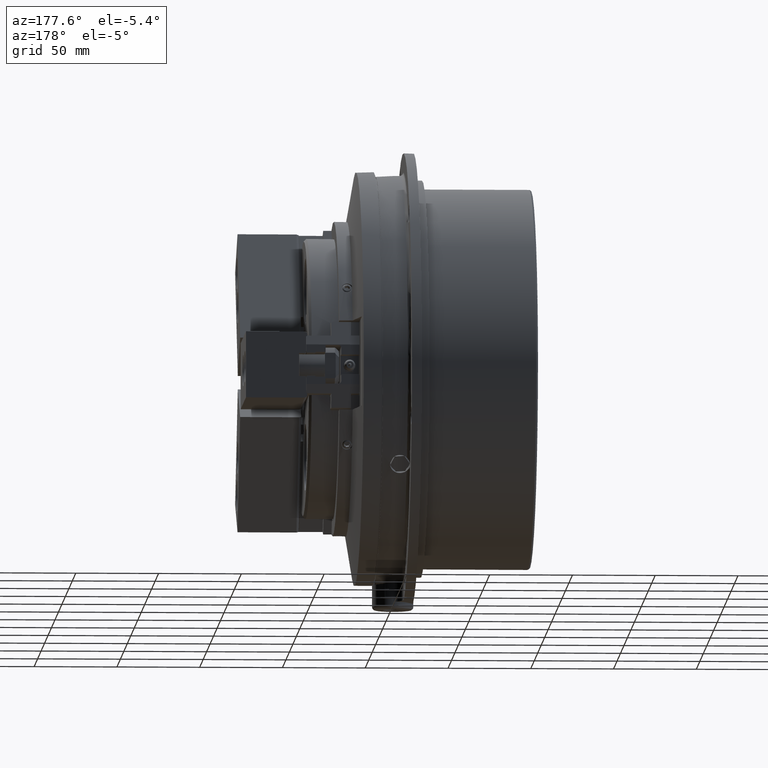
[diagram: clean part render]
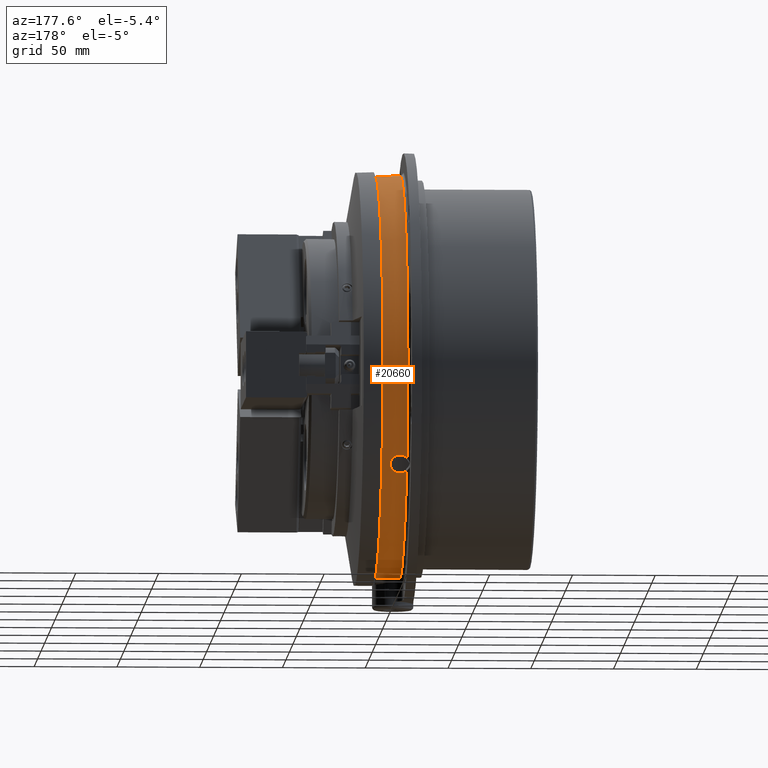
[diagram: same view with one face highlighted and labeled with its STEP entity id]
A machine part, auxiliary view. The second image highlights one B-rep face of the part: STEP entity #20660.
In plain terms, the highlighted conical surface has half-angle 1.685 deg.
Its self-contained STEP definition (entity closure, byte-faithful):
#135=CONICAL_SURFACE('',#22106,122.5,0.0294035619083412);
#596=B_SPLINE_CURVE_WITH_KNOTS('',3,(#32305,#32306,#32307,#32308,#32309),
 .UNSPECIFIED.,.F.,.F.,(4,1,4),(0.,0.5,1.),.UNSPECIFIED.);
#613=B_SPLINE_CURVE_WITH_KNOTS('',3,(#33036,#33037,#33038,#33039),
 .UNSPECIFIED.,.F.,.F.,(4,4),(0.,1.),.UNSPECIFIED.);
#614=B_SPLINE_CURVE_WITH_KNOTS('',3,(#33074,#33075,#33076,#33077,#33078,
#33079),.UNSPECIFIED.,.F.,.F.,(4,1,1,4),(0.,0.25,0.5,1.),.UNSPECIFIED.);
#615=B_SPLINE_CURVE_WITH_KNOTS('',3,(#33082,#33083,#33084,#33085,#33086,
#33087,#33088,#33089,#33090,#33091,#33092,#33093,#33094,#33095,#33096,#33097,
#33098,#33099,#33100,#33101,#33102,#33103,#33104,#33105,#33106,#33107,#33108,
#33109,#33110,#33111,#33112,#33113,#33114,#33115,#33116,#33117,#33118,#33119,
#33120,#33121,#33122,#33123,#33124,#33125,#33126,#33127,#33128,#33129,#33130,
#33131,#33132,#33133,#33134,#33135,#33136,#33137,#33138,#33139,#33140,#33141,
#33142,#33143,#33144,#33145,#33146,#33147,#33148,#33149,#33150,#33151,#33152,
#33153,#33154,#33155,#33156,#33157,#33158,#33159,#33160,#33161,#33162,#33163,
#33164,#33165,#33166,#33167,#33168,#33169,#33170,#33171,#33172,#33173,#33174,
#33175,#33176,#33177,#33178,#33179,#33180,#33181,#33182,#33183,#33184,#33185,
#33186,#33187,#33188,#33189,#33190,#33191,#33192,#33193,#33194,#33195,#33196,
#33197,#33198,#33199,#33200,#33201,#33202,#33203,#33204,#33205,#33206,#33207,
#33208,#33209,#33210,#33211,#33212,#33213,#33214,#33215,#33216,#33217,#33218,
#33219,#33220,#33221,#33222),.UNSPECIFIED.,.F.,.F.,(4,1,1,1,2,1,2,2,1,1,
1,1,2,2,2,1,2,1,1,1,2,2,1,1,2,1,1,2,1,2,2,1,1,1,1,2,2,2,1,2,1,1,1,2,2,1,
2,1,1,2,1,2,2,1,1,1,1,2,2,2,1,2,1,1,1,2,2,1,1,2,1,1,2,1,1,1,1,2,2,1,1,2,
1,1,2,1,2,2,1,1,1,2,1,2,2,1,1,1,4),(0.,0.0156249999999962,0.0312499999999924,
0.0468749999999886,0.0624999999999848,0.070312499999983,0.0722656249999825,
0.074218749999982,0.0781249999999821,0.0937499999999817,0.109374999999981,
0.124999999999981,0.14062499999998,0.14453124999998,0.14648437499998,0.14843749999998,
0.156249999999981,0.171874999999982,0.187499999999984,0.203124999999985,
0.218749999999987,0.220703124999987,0.222656249999987,0.226562499999988,
0.23437499999999,0.249999999999992,0.265624999999994,0.281249999999997,
0.289062499999997,0.291015624999997,0.292968749999997,0.296874999999995,
0.312499999999991,0.328124999999987,0.343749999999983,0.359374999999979,
0.363281249999978,0.365234374999978,0.367187499999978,0.374999999999979,
0.390624999999983,0.406249999999986,0.42187499999999,0.437499999999993,
0.441406249999994,0.445312499999996,0.453124999999999,0.468750000000007,
0.484375000000015,0.500000000000023,0.507812500000026,0.509765625000027,
0.511718750000027,0.515625000000028,0.531250000000034,0.54687500000004,
0.562500000000046,0.578125000000052,0.582031250000053,0.583984375000053,
0.585937500000053,0.593750000000053,0.609375000000054,0.625000000000054,
0.640625000000055,0.656250000000055,0.671875000000056,0.687500000000056,
0.703125000000057,0.718750000000057,0.726562500000058,0.728515625000057,
0.730468750000056,0.734375000000055,0.75000000000005,0.765625000000045,
0.78125000000004,0.796875000000035,0.800781250000034,0.802734375000033,
0.804687500000032,0.812500000000031,0.828125000000029,0.843750000000027,
0.859375000000024,0.867187500000024,0.871093750000023,0.875000000000022,
0.890625000000019,0.906250000000016,0.921875000000013,0.93750000000001,
0.945312500000008,0.947265625000008,0.949218750000008,0.953125000000008,
0.968750000000005,0.984375000000003,1.),.UNSPECIFIED.);
#616=B_SPLINE_CURVE_WITH_KNOTS('',3,(#33226,#33227,#33228,#33229,#33230,
#33231,#33232,#33233,#33234,#33235,#33236,#33237,#33238,#33239,#33240,#33241,
#33242,#33243,#33244,#33245,#33246,#33247,#33248,#33249,#33250,#33251,#33252,
#33253,#33254,#33255,#33256,#33257,#33258,#33259,#33260,#33261,#33262,#33263,
#33264,#33265,#33266,#33267,#33268,#33269,#33270,#33271,#33272,#33273,#33274,
#33275,#33276,#33277,#33278,#33279,#33280,#33281,#33282,#33283,#33284,#33285,
#33286,#33287,#33288,#33289,#33290,#33291,#33292,#33293,#33294,#33295,#33296,
#33297,#33298,#33299,#33300,#33301,#33302,#33303,#33304,#33305,#33306,#33307,
#33308,#33309,#33310,#33311,#33312,#33313,#33314,#33315,#33316,#33317,#33318,
#33319,#33320,#33321,#33322,#33323,#33324,#33325,#33326,#33327,#33328,#33329,
#33330,#33331,#33332,#33333,#33334,#33335,#33336,#33337,#33338,#33339,#33340,
#33341,#33342,#33343,#33344,#33345,#33346,#33347,#33348,#33349,#33350,#33351,
#33352,#33353,#33354,#33355,#33356,#33357,#33358,#33359,#33360,#33361,#33362,
#33363,#33364,#33365,#33366),.UNSPECIFIED.,.F.,.F.,(4,1,1,1,2,1,2,2,1,1,
1,1,2,2,2,1,2,1,1,1,2,2,1,1,2,1,1,2,1,2,2,1,1,1,1,2,2,2,1,2,1,1,1,2,2,1,
2,1,1,2,1,2,2,1,1,1,1,2,2,2,1,2,1,1,1,2,2,1,1,2,1,1,2,1,1,1,1,2,2,1,1,2,
1,1,2,1,2,2,1,1,1,2,1,2,2,1,1,1,4),(0.,0.0156250000000027,0.0312500000000053,
0.046875000000008,0.0625000000000106,0.0703125000000123,0.0722656250000127,
0.0742187500000131,0.0781250000000145,0.0937500000000184,0.109375000000022,
0.125000000000026,0.14062500000003,0.14453125000003,0.146484375000031,0.148437500000031,
0.156250000000032,0.171875000000034,0.187500000000036,0.203125000000038,
0.21875000000004,0.22070312500004,0.222656250000039,0.226562500000039,0.234375000000038,
0.250000000000037,0.265625000000036,0.281250000000036,0.289062500000035,
0.291015625000035,0.292968750000035,0.296875000000035,0.312500000000034,
0.328125000000034,0.343750000000034,0.359375000000033,0.363281250000034,
0.365234375000034,0.367187500000034,0.375000000000033,0.390625000000032,
0.40625000000003,0.421875000000029,0.437500000000028,0.441406250000027,
0.445312500000027,0.453125000000026,0.468750000000024,0.484375000000022,
0.50000000000002,0.507812500000019,0.509765625000019,0.511718750000018,
0.515625000000018,0.531250000000016,0.546875000000014,0.562500000000013,
0.578125000000011,0.58203125000001,0.58398437500001,0.58593750000001,0.59375000000001,
0.609375000000008,0.625000000000006,0.640625000000005,0.656250000000003,
0.671875000000001,0.6875,0.703124999999998,0.718749999999996,0.726562499999995,
0.728515624999995,0.730468749999994,0.734374999999994,0.749999999999992,
0.765624999999989,0.781249999999987,0.796874999999985,0.800781249999984,
0.802734374999985,0.804687499999985,0.812499999999985,0.828124999999985,
0.843749999999985,0.859374999999984,0.867187499999984,0.871093749999984,
0.874999999999984,0.890624999999985,0.906249999999985,0.921874999999986,
0.937499999999987,0.945312499999987,0.947265624999987,0.949218749999987,
0.953124999999987,0.968749999999992,0.984374999999996,1.),.UNSPECIFIED.);
#5015=ORIENTED_EDGE('',*,*,#10723,.F.);
#5016=ORIENTED_EDGE('',*,*,#10724,.T.);
#5017=ORIENTED_EDGE('',*,*,#10632,.F.);
#5018=ORIENTED_EDGE('',*,*,#10631,.T.);
#5019=ORIENTED_EDGE('',*,*,#10722,.T.);
#5020=ORIENTED_EDGE('',*,*,#10725,.F.);
#5021=ORIENTED_EDGE('',*,*,#10726,.T.);
#5022=ORIENTED_EDGE('',*,*,#10727,.F.);
#5023=ORIENTED_EDGE('',*,*,#10728,.T.);
#10631=EDGE_CURVE('',#13528,#13529,#596,.T.);
#10632=EDGE_CURVE('',#13528,#13530,#15532,.T.);
#10722=EDGE_CURVE('',#13529,#13604,#613,.T.);
#10723=EDGE_CURVE('',#13605,#13606,#15564,.T.);
#10724=EDGE_CURVE('',#13605,#13530,#614,.T.);
#10725=EDGE_CURVE('',#13607,#13604,#15565,.T.);
#10726=EDGE_CURVE('',#13607,#13608,#615,.T.);
#10727=EDGE_CURVE('',#13609,#13608,#15566,.T.);
#10728=EDGE_CURVE('',#13609,#13606,#616,.T.);
#13528=VERTEX_POINT('',#32288);
#13529=VERTEX_POINT('',#32304);
#13530=VERTEX_POINT('',#32312);
#13604=VERTEX_POINT('',#33035);
#13605=VERTEX_POINT('',#33072);
#13606=VERTEX_POINT('',#33073);
#13607=VERTEX_POINT('',#33081);
#13608=VERTEX_POINT('',#33223);
#13609=VERTEX_POINT('',#33225);
#15532=CIRCLE('',#22052,122.5);
#15564=CIRCLE('',#22107,122.942909967882);
#15565=CIRCLE('',#22108,122.942909967882);
#15566=CIRCLE('',#22109,122.942909967882);
#16377=EDGE_LOOP('',(#5015,#5016,#5017,#5018,#5019,#5020,#5021,#5022,#5023));
#18129=FACE_BOUND('',#16377,.T.);
#20660=ADVANCED_FACE('',(#18129),#135,.T.);
#22052=AXIS2_PLACEMENT_3D('',#32311,#24365,#24366);
#22106=AXIS2_PLACEMENT_3D('',#33070,#24515,#24516);
#22107=AXIS2_PLACEMENT_3D('',#33071,#24517,#24518);
#22108=AXIS2_PLACEMENT_3D('',#33080,#24519,#24520);
#22109=AXIS2_PLACEMENT_3D('',#33224,#24521,#24522);
#24365=DIRECTION('',(1.,0.,0.));
#24366=DIRECTION('',(0.,0.,-1.));
#24515=DIRECTION('',(-1.,0.,0.));
#24516=DIRECTION('',(0.,0.,1.));
#24517=DIRECTION('',(-1.,0.,0.));
#24518=DIRECTION('',(0.,0.,1.));
#24519=DIRECTION('',(-1.,0.,0.));
#24520=DIRECTION('',(0.,0.,1.));
#24521=DIRECTION('',(-1.,0.,0.));
#24522=DIRECTION('',(0.,0.,1.));
#32288=CARTESIAN_POINT('',(-43.,10.5718090474912,-122.042971339866));
#32304=CARTESIAN_POINT('',(-56.3394536049577,14.9703474701724,-121.977112838125));
#32305=CARTESIAN_POINT('',(-43.,10.5718090474912,-122.042971339866));
#32306=CARTESIAN_POINT('',(-44.7222285575526,12.2929740454176,-121.944721669392));
#32307=CARTESIAN_POINT('',(-49.0142754520038,14.8967414398738,-121.774502320922));
#32308=CARTESIAN_POINT('',(-53.9478571196286,15.3128644289486,-121.864205939539));
#32309=CARTESIAN_POINT('',(-56.3394536049577,14.9703474701724,-121.977112838125));
#32311=CARTESIAN_POINT('',(-43.,0.,0.));
#32312=CARTESIAN_POINT('',(-43.,-119.142865468958,28.4820576476792));
#33035=CARTESIAN_POINT('',(-58.0587986503759,18.2039907064025,-121.587720735821));
#33036=CARTESIAN_POINT('',(-56.3394536049577,14.9703474701724,-121.977112838125));
#33037=CARTESIAN_POINT('',(-57.4030278511381,15.6967408825319,-121.919478603877));
#33038=CARTESIAN_POINT('',(-58.0587986503759,16.9298978432378,-121.778476632056));
#33039=CARTESIAN_POINT('',(-58.0587986503759,18.2039907064025,-121.587720735821));
#33070=CARTESIAN_POINT('',(-43.,0.,0.));
#33071=CARTESIAN_POINT('',(-58.0587986503759,0.,0.));
#33072=CARTESIAN_POINT('',(-58.0587986503759,-118.764053113984,31.7814222354764));
#33073=CARTESIAN_POINT('',(-58.0587986503759,-4.41884074341852,122.863472838167));
#33074=CARTESIAN_POINT('',(-58.0587986503759,-118.764053113984,31.7814222354763));
#33075=CARTESIAN_POINT('',(-56.7553635512496,-118.647424101348,32.0689521878617));
#33076=CARTESIAN_POINT('',(-54.1189390030201,-118.488416715432,32.3566475019631));
#33077=CARTESIAN_POINT('',(-48.7899276430333,-118.481365427696,31.787026643662));
#33078=CARTESIAN_POINT('',(-45.1108537624327,-118.821435569843,30.0936487963802));
#33079=CARTESIAN_POINT('',(-43.,-119.142865468958,28.4820576476792));
#33080=CARTESIAN_POINT('',(-58.0587986503759,0.,0.));
#33081=CARTESIAN_POINT('',(-58.0587986503759,104.193468303322,-65.258564758163));
#33082=CARTESIAN_POINT('',(-58.0587986503759,104.193468303322,-65.258564758163));
#33083=CARTESIAN_POINT('',(-57.9513831631319,104.138325726295,-65.3406548530899));
#33084=CARTESIAN_POINT('',(-57.7307035160812,104.032491645785,-65.4969565729246));
#33085=CARTESIAN_POINT('',(-57.3826326795509,103.886851191712,-65.7085335131048));
#33086=CARTESIAN_POINT('',(-57.0177244349535,103.754284777377,-65.8976111062289));
#33087=CARTESIAN_POINT('',(-56.7631948000911,103.674729262729,-66.0086761939701));
#33088=CARTESIAN_POINT('',(-56.5679967674799,103.618461506507,-66.0862693911867));
#33089=CARTESIAN_POINT('',(-56.4857673659214,103.595725383427,-66.117410025605));
#33090=CARTESIAN_POINT('',(-56.4023994983387,103.573892422979,-66.1470427310335));
#33091=CARTESIAN_POINT('',(-56.3689608102865,103.56523192566,-66.1587746106875));
#33092=CARTESIAN_POINT('',(-56.3521930189591,103.560937385637,-66.1645807961265));
#33093=CARTESIAN_POINT('',(-56.3018554714852,103.548189326749,-66.1817818803024));
#33094=CARTESIAN_POINT('',(-56.1336674874102,103.506556350047,-66.2377272955184));
#33095=CARTESIAN_POINT('',(-55.8274011102705,103.439292666895,-66.3260466414395));
#33096=CARTESIAN_POINT('',(-55.4116899020717,103.36569355247,-66.4180555166305));
#33097=CARTESIAN_POINT('',(-54.9886752818558,103.308131323031,-66.4845530897337));
#33098=CARTESIAN_POINT('',(-54.7017562703573,103.280569933295,-66.5117642338673));
#33099=CARTESIAN_POINT('',(-54.5208606826642,103.266811939517,-66.5232976046656));
#33100=CARTESIAN_POINT('',(-54.4846029005286,103.264233951138,-66.5253302244245));
#33101=CARTESIAN_POINT('',(-54.4300972205324,103.260629700723,-66.5279646267463));
#33102=CARTESIAN_POINT('',(-54.4119005628211,103.259471576664,-66.5287739935543));
#33103=CARTESIAN_POINT('',(-54.3755083256659,103.257245809713,-66.530252285407));
#33104=CARTESIAN_POINT('',(-54.2845697793805,103.251909820712,-66.5335955842442));
#33105=CARTESIAN_POINT('',(-54.1938404048708,103.247710437376,-66.5351856917405));
#33106=CARTESIAN_POINT('',(-53.9764854440247,103.239782043077,-66.535686959902));
#33107=CARTESIAN_POINT('',(-53.6877325152206,103.234939130454,-66.5275245605728));
#33108=CARTESIAN_POINT('',(-53.2577073364855,103.244545784078,-66.4892636671153));
#33109=CARTESIAN_POINT('',(-52.8307790865244,103.27095564331,-66.4250382419901));
#33110=CARTESIAN_POINT('',(-52.5482525189442,103.2998799503,-66.3646696961967));
#33111=CARTESIAN_POINT('',(-52.3899374124982,103.319414118189,-66.3256238409653));
#33112=CARTESIAN_POINT('',(-52.3723684431984,103.321628388339,-66.3212178270358));
#33113=CARTESIAN_POINT('',(-52.3373143776592,103.326139070012,-66.3122812651134));
#33114=CARTESIAN_POINT('',(-52.284840344594,103.333030614179,-66.2986850026357));
#33115=CARTESIAN_POINT('',(-52.1631471807913,103.349985228662,-66.2656258920845));
#33116=CARTESIAN_POINT('',(-52.0601076901967,103.366002608579,-66.2350192485264));
#33117=CARTESIAN_POINT('',(-51.8556995033714,103.3999869815,-66.1708137046827));
#33118=CARTESIAN_POINT('',(-51.5876063046543,103.450493566313,-66.0772349847478));
#33119=CARTESIAN_POINT('',(-51.198646180229,103.541535006751,-65.9132093427436));
#33120=CARTESIAN_POINT('',(-50.9481474203602,103.612366965126,-65.7880071183681));
#33121=CARTESIAN_POINT('',(-50.7636368389438,103.669330497515,-65.6880346628999));
#33122=CARTESIAN_POINT('',(-50.6874588494957,103.693865958031,-65.6451134509542));
#33123=CARTESIAN_POINT('',(-50.6121710057909,103.719413063965,-65.6005831268019));
#33124=CARTESIAN_POINT('',(-50.582127438423,103.729713151531,-65.5826415683831));
#33125=CARTESIAN_POINT('',(-50.5671370906052,103.734905376736,-65.5736033685656));
#33126=CARTESIAN_POINT('',(-50.5223637888685,103.750572558715,-65.5463489162072));
#33127=CARTESIAN_POINT('',(-50.3743006383476,103.803447227092,-65.4544859453676));
#33128=CARTESIAN_POINT('',(-50.1183033215886,103.904398890504,-65.2800881579534));
#33129=CARTESIAN_POINT('',(-49.7988807515114,104.050897381841,-65.0286359429562));
#33130=CARTESIAN_POINT('',(-49.501191546036,104.209056852481,-64.7583298448912));
#33131=CARTESIAN_POINT('',(-49.3173302321572,104.32223420454,-64.5654064008578));
#33132=CARTESIAN_POINT('',(-49.2070867368165,104.395415410194,-64.4407430079686));
#33133=CARTESIAN_POINT('',(-49.1852718314135,104.410174076354,-64.415605752005));
#33134=CARTESIAN_POINT('',(-49.1529031219806,104.432496708926,-64.3775900907848));
#33135=CARTESIAN_POINT('',(-49.1421672442261,104.439972069603,-64.3648602552554));
#33136=CARTESIAN_POINT('',(-49.1208417441716,104.454964909372,-64.3393302005546));
#33137=CARTESIAN_POINT('',(-49.0679064745161,104.492542942145,-64.2753450509455));
#33138=CARTESIAN_POINT('',(-49.0168540568804,104.530597054832,-64.210563190832));
#33139=CARTESIAN_POINT('',(-48.8978885263609,104.622818724625,-64.0535752958558));
#33140=CARTESIAN_POINT('',(-48.748752225032,104.748156359063,-63.8402315389042));
#33141=CARTESIAN_POINT('',(-48.5529836110743,104.943034101857,-63.5082823465172));
#33142=CARTESIAN_POINT('',(-48.3850751179919,105.144650237011,-63.1643649215288));
#33143=CARTESIAN_POINT('',(-48.2919485338526,105.28354276393,-62.9269650925067));
#33144=CARTESIAN_POINT('',(-48.2397955146723,105.371773510971,-62.7759669221019));
#33145=CARTESIAN_POINT('',(-48.2296970005462,105.389441820213,-62.7457199649661));
#33146=CARTESIAN_POINT('',(-48.2101683777812,105.424804953593,-62.685161106591));
#33147=CARTESIAN_POINT('',(-48.1818732338226,105.477897878414,-62.5942109485938));
#33148=CARTESIAN_POINT('',(-48.1565470528448,105.5311325364,-62.5029268936021));
#33149=CARTESIAN_POINT('',(-48.1098039661537,105.637784389212,-62.3199167659503));
#33150=CARTESIAN_POINT('',(-48.0578942894109,105.780472714891,-62.0747254637751));
#33151=CARTESIAN_POINT('',(-48.0108677408133,105.995893660791,-61.7034218249615));
#33152=CARTESIAN_POINT('',(-48.0001261401683,106.140415024667,-61.4535239056111));
#33153=CARTESIAN_POINT('',(-47.9999402191643,106.24914988556,-61.2651968561842));
#33154=CARTESIAN_POINT('',(-48.0015040154084,106.294527847034,-61.1865388521008));
#33155=CARTESIAN_POINT('',(-48.0051507139912,106.33999705706,-61.1076418491927));
#33156=CARTESIAN_POINT('',(-48.0067768652718,106.358192089319,-61.0760638384984));
#33157=CARTESIAN_POINT('',(-48.0076738833761,106.367294474343,-61.060263148948));
#33158=CARTESIAN_POINT('',(-48.0106105962602,106.394556438078,-61.0129298735872));
#33159=CARTESIAN_POINT('',(-48.0220464706905,106.485220841965,-60.8554505354889));
#33160=CARTESIAN_POINT('',(-48.0572940807738,106.646558496939,-60.5746437730173));
#33161=CARTESIAN_POINT('',(-48.1348384596895,106.857834765568,-60.2057856978127));
#33162=CARTESIAN_POINT('',(-48.2426932931202,107.065350422931,-59.8424641904436));
#33163=CARTESIAN_POINT('',(-48.3349580994583,107.201214047801,-59.6039955226151));
#33164=CARTESIAN_POINT('',(-48.3991379270462,107.285353820201,-59.4561615420389));
#33165=CARTESIAN_POINT('',(-48.4123000307826,107.302142991417,-59.426655280586));
#33166=CARTESIAN_POINT('',(-48.4325365363528,107.327268471282,-59.3824876827871));
#33167=CARTESIAN_POINT('',(-48.4393678376634,107.335638202094,-59.3677729171838));
#33168=CARTESIAN_POINT('',(-48.4531754972448,107.352333957493,-59.3384168197975));
#33169=CARTESIAN_POINT('',(-48.4880534065887,107.393959958685,-59.2652174215589));
#33170=CARTESIAN_POINT('',(-48.5247160907974,107.435022710388,-59.192967920991));
#33171=CARTESIAN_POINT('',(-48.616081536208,107.53251494642,-59.0213691971714));
#33172=CARTESIAN_POINT('',(-48.7468929945962,107.659684986514,-58.7973661370957));
#33173=CARTESIAN_POINT('',(-48.9695951108293,107.842249526239,-58.4755526768385));
#33174=CARTESIAN_POINT('',(-49.2187131150073,108.016770877725,-58.1679648884086));
#33175=CARTESIAN_POINT('',(-49.4026308661438,108.127777347017,-57.9725646359495));
#33176=CARTESIAN_POINT('',(-49.5957304726964,108.236083366816,-57.7821631578147));
#33177=CARTESIAN_POINT('',(-49.6956834226647,108.288219765883,-57.6906339158587));
#33178=CARTESIAN_POINT('',(-49.9021692388879,108.388605182031,-57.5147668311007));
#33179=CARTESIAN_POINT('',(-50.1152463101557,108.485108771553,-57.3460812954904));
#33180=CARTESIAN_POINT('',(-50.4543804999185,108.618510424171,-57.11440107299));
#33181=CARTESIAN_POINT('',(-50.6935153902702,108.699948800195,-56.9742689494415));
#33182=CARTESIAN_POINT('',(-50.8778486662766,108.758198515055,-56.8746586620788));
#33183=CARTESIAN_POINT('',(-50.9556931640477,108.781879243675,-56.8342990001548));
#33184=CARTESIAN_POINT('',(-51.0506883211469,108.809402581886,-56.7876137202225));
#33185=CARTESIAN_POINT('',(-51.0825666757874,108.818457711019,-56.7722856597076));
#33186=CARTESIAN_POINT('',(-51.130444194768,108.831922767909,-56.7495167498063));
#33187=CARTESIAN_POINT('',(-51.2906008163213,108.876068794577,-56.6750290156833));
#33188=CARTESIAN_POINT('',(-51.5839120649604,108.948980800516,-56.5535019538179));
#33189=CARTESIAN_POINT('',(-51.9854703494195,109.032660415763,-56.4176795225484));
#33190=CARTESIAN_POINT('',(-52.3974218131136,109.103006646593,-56.3079217590877));
#33191=CARTESIAN_POINT('',(-52.6790369470055,109.141001985672,-56.2522904926517));
#33192=CARTESIAN_POINT('',(-52.8572794640931,109.16191484503,-56.223140348335));
#33193=CARTESIAN_POINT('',(-52.8930397651099,109.165955508946,-56.2175916452782));
#33194=CARTESIAN_POINT('',(-52.946849327021,109.171802055536,-56.2096942678433));
#33195=CARTESIAN_POINT('',(-52.9827966776096,109.175630052452,-56.2045689311702));
#33196=CARTESIAN_POINT('',(-53.0906403765143,109.186648836252,-56.1900936463868));
#33197=CARTESIAN_POINT('',(-53.1805178594007,109.194867926772,-56.1798972390509));
#33198=CARTESIAN_POINT('',(-53.3962383558502,109.212774988907,-56.1589562321721));
#33199=CARTESIAN_POINT('',(-53.6839043967694,109.231806427516,-56.1404399136629));
#33200=CARTESIAN_POINT('',(-54.1155166422755,109.246109715277,-56.1403795661228));
#33201=CARTESIAN_POINT('',(-54.4033332839189,109.246179112391,-56.1587647872541));
#33202=CARTESIAN_POINT('',(-54.6192244434066,109.242631716677,-56.1795496104662));
#33203=CARTESIAN_POINT('',(-54.727177202396,109.239957201689,-56.1916926555374));
#33204=CARTESIAN_POINT('',(-54.8351409150612,109.235913138906,-56.2064934607923));
#33205=CARTESIAN_POINT('',(-54.9071191848508,109.232910059103,-56.2169559526445));
#33206=CARTESIAN_POINT('',(-54.9431157435053,109.231254716995,-56.2224857970387));
#33207=CARTESIAN_POINT('',(-55.123041420796,109.222206423691,-56.2516254268743));
#33208=CARTESIAN_POINT('',(-55.4073948371558,109.202959109617,-56.3072588177498));
#33209=CARTESIAN_POINT('',(-55.8236474672134,109.160130815982,-56.416933541438));
#33210=CARTESIAN_POINT('',(-56.2297596634306,109.103452425332,-56.5524504258988));
#33211=CARTESIAN_POINT('',(-56.4937271741763,109.056350280171,-56.6600311833443));
#33212=CARTESIAN_POINT('',(-56.6891172819511,109.017438982505,-56.7472836558359));
#33213=CARTESIAN_POINT('',(-56.7699906447878,109.000478338547,-56.7850082827565));
#33214=CARTESIAN_POINT('',(-56.8501799202832,108.982565023512,-56.8244686524483));
#33215=CARTESIAN_POINT('',(-56.8822006315115,108.97532301535,-56.8403923126309));
#33216=CARTESIAN_POINT('',(-56.8981795803756,108.971664521914,-56.8484220174481));
#33217=CARTESIAN_POINT('',(-56.9459504389456,108.960593053605,-56.8726783027966));
#33218=CARTESIAN_POINT('',(-57.1042126644984,108.923017543837,-56.9547142693883));
#33219=CARTESIAN_POINT('',(-57.380389521412,108.849379694086,-57.1129214017671));
#33220=CARTESIAN_POINT('',(-57.7303235533553,108.738427049495,-57.3459896634038));
#33221=CARTESIAN_POINT('',(-57.9513829465344,108.655829953591,-57.516107980946));
#33222=CARTESIAN_POINT('',(-58.0587986503623,108.612309046747,-57.6049080799932));
#33223=CARTESIAN_POINT('',(-58.0587986503668,108.612309046748,-57.6049080799933));
#33224=CARTESIAN_POINT('',(-58.0587986503759,0.,0.));
#33225=CARTESIAN_POINT('',(-58.0587986503723,4.41884074342815,122.863472838167));
#33226=CARTESIAN_POINT('',(-58.0587986503713,4.41884074342533,122.863472838167));
#33227=CARTESIAN_POINT('',(-57.9513831631271,4.51750413954441,122.856763013095));
#33228=CARTESIAN_POINT('',(-57.7307035160762,4.70578243983132,122.843258870704));
#33229=CARTESIAN_POINT('',(-57.3826326795455,4.96183367191873,122.822919007748));
#33230=CARTESIAN_POINT('',(-57.0177244349476,5.19186287801767,122.802651921808));
#33231=CARTESIAN_POINT('',(-56.763194800085,5.32782582279907,122.789287368982));
#33232=CARTESIAN_POINT('',(-56.5679967674736,5.42315738086046,122.779354661288));
#33233=CARTESIAN_POINT('',(-56.4857673659149,5.46149402289629,122.775234918326));
#33234=CARTESIAN_POINT('',(-56.4023994983322,5.49807317880412,122.771143372653));
#33235=CARTESIAN_POINT('',(-56.3689608102799,5.51256353327833,122.769509101792));
#33236=CARTESIAN_POINT('',(-56.3521930189525,5.5197391073792,122.768693013754));
#33237=CARTESIAN_POINT('',(-56.3018554714785,5.54100971269169,122.766253412996));
#33238=CARTESIAN_POINT('',(-56.1336674874034,5.6102763518451,122.758170905145));
#33239=CARTESIAN_POINT('',(-55.8274011102635,5.72039499063396,122.744078519744));
#33240=CARTESIAN_POINT('',(-55.41168990299,5.83687657135221,122.726344233114));
#33241=CARTESIAN_POINT('',(-54.9886752818482,5.92324627345123,122.709742688111));
#33242=CARTESIAN_POINT('',(-54.7017562703495,5.96059251040496,122.699479396502));
#33243=CARTESIAN_POINT('',(-54.5208606826562,5.97745969939628,122.693331309784));
#33244=CARTESIAN_POINT('',(-54.4846029005206,5.98050899393335,122.692115016237));
#33245=CARTESIAN_POINT('',(-54.4300972205244,5.98459257847486,122.690310844977));
#33246=CARTESIAN_POINT('',(-54.4119005628131,5.98587257272145,122.689712563525));
#33247=CARTESIAN_POINT('',(-54.3755083256578,5.98826569449505,122.688524138729));
#33248=CARTESIAN_POINT('',(-54.2845697793724,5.99382907072102,122.685574686119));
#33249=CARTESIAN_POINT('',(-54.1938404048627,5.99730583587554,122.682732967217));
#33250=CARTESIAN_POINT('',(-53.9764854440166,6.00170414398671,122.676117410424));
#33251=CARTESIAN_POINT('',(-53.6877325152123,5.99705675512285,122.6678421254));
#33252=CARTESIAN_POINT('',(-53.257707336477,5.95911852260442,122.657031284755));
#33253=CARTESIAN_POINT('',(-52.8307790865159,5.89029274326062,122.647790181197));
#33254=CARTESIAN_POINT('',(-52.5482525189356,5.82354989551841,122.642655092941));
#33255=CARTESIAN_POINT('',(-52.3899374124896,5.77996810903082,122.640049250959));
#33256=CARTESIAN_POINT('',(-52.3723684431898,5.77504525396362,122.639763858195));
#33257=CARTESIAN_POINT('',(-52.3373143776506,5.76505062347979,122.639201942151));
#33258=CARTESIAN_POINT('',(-52.2848403445854,5.74983014269406,122.638372063232));
#33259=CARTESIAN_POINT('',(-52.1631471807827,5.71272280588825,122.63652563481));
#33260=CARTESIAN_POINT('',(-52.0601076901881,5.67820798508384,122.635093770941));
#33261=CARTESIAN_POINT('',(-51.8556995033629,5.60561216659046,122.632422329301));
#33262=CARTESIAN_POINT('',(-51.5876063662755,5.49931719332543,122.629372993213));
#33263=CARTESIAN_POINT('',(-51.19864606179,5.31174648427507,122.626204367779));
#33264=CARTESIAN_POINT('',(-50.9481474203519,5.16790194629137,122.624945497219));
#33265=CARTESIAN_POINT('',(-50.7636368389356,5.05284149398251,122.624291135623));
#33266=CARTESIAN_POINT('',(-50.6874588494876,5.00340290381804,122.624078861751));
#33267=CARTESIAN_POINT('',(-50.6121710057828,4.95206495889631,122.623938142406));
#33268=CARTESIAN_POINT('',(-50.5821274384149,4.93137706973931,122.62388750069));
#33269=CARTESIAN_POINT('',(-50.5671370905972,4.92095364649031,122.623864999711));
#33270=CARTESIAN_POINT('',(-50.5223637888605,4.88951700739172,122.623805951132));
#33271=CARTESIAN_POINT('',(-50.3743006383397,4.78352400678921,122.623665271742));
#33272=CARTESIAN_POINT('',(-50.1183036294204,4.58201494717803,122.623893142297));
#33273=CARTESIAN_POINT('',(-49.7988807515042,4.29100200912334,122.62503839072));
#33274=CARTESIAN_POINT('',(-49.5011915460291,3.97783032608083,122.626855461111));
#33275=CARTESIAN_POINT('',(-49.3173302321506,3.75416504653227,122.62840820111));
#33276=CARTESIAN_POINT('',(-49.2070867368101,3.60961277854089,122.629453287842));
#33277=CARTESIAN_POINT('',(-49.1852718314072,3.58046394321472,122.629666039681));
#33278=CARTESIAN_POINT('',(-49.1529031219743,3.53638009857059,122.629990175957));
#33279=CARTESIAN_POINT('',(-49.1421672442199,3.52161805727767,122.630099110441));
#33280=CARTESIAN_POINT('',(-49.1208417441653,3.49201196146214,122.630318263205));
#33281=CARTESIAN_POINT('',(-49.06790647451,3.41781018004873,122.630869219407));
#33282=CARTESIAN_POINT('',(-49.0168540568744,3.34268038714269,122.631434117655));
#33283=CARTESIAN_POINT('',(-48.8978885263552,3.16061404710986,122.632806478988));
#33284=CARTESIAN_POINT('',(-48.7487522250267,2.91318411663164,122.634680175985));
#33285=CARTESIAN_POINT('',(-48.5529836110697,2.5282688118615,122.637474655683));
#33286=CARTESIAN_POINT('',(-48.3850751179878,2.12961951743967,122.640120638046));
#33287=CARTESIAN_POINT('',(-48.291948533849,1.85457897119258,122.641705180242));
#33288=CARTESIAN_POINT('',(-48.2397955146691,1.67969534617627,122.642616163372));
#33289=CARTESIAN_POINT('',(-48.229697000543,1.64466655828841,122.64279388945));
#33290=CARTESIAN_POINT('',(-48.2101683777781,1.57453948182133,122.643139832127));
#33291=CARTESIAN_POINT('',(-48.1818732338197,1.46922787210722,122.643644574784));
#33292=CARTESIAN_POINT('',(-48.1565470528421,1.36355623253077,122.644105113466));
#33293=CARTESIAN_POINT('',(-48.1098039661515,1.15173888642814,122.644963263536));
#33294=CARTESIAN_POINT('',(-48.0578942894092,0.868052827118155,122.64593932731));
#33295=CARTESIAN_POINT('',(-48.0108677408124,0.438783970437707,122.646847519559));
#33296=CARTESIAN_POINT('',(-48.0001261401681,0.150105341988796,122.647057732391));
#33297=CARTESIAN_POINT('',(-47.9999402191644,-0.0673580974812729,122.647061359488));
#33298=CARTESIAN_POINT('',(-48.0015040154087,-0.15816690796524,122.647030824854));
#33299=CARTESIAN_POINT('',(-48.0051507139917,-0.249228321779546,122.646959814373));
#33300=CARTESIAN_POINT('',(-48.0067768652724,-0.285673197371272,122.646928169185));
#33301=CARTESIAN_POINT('',(-48.0076738833768,-0.303908188430975,122.646910721075));
#33302=CARTESIAN_POINT('',(-48.0106105962609,-0.358530989205516,122.646853636547));
#33303=CARTESIAN_POINT('',(-48.0220464706916,-0.54024429851327,122.646631644482));
#33304=CARTESIAN_POINT('',(-48.0572940807756,-0.864098915854928,122.645950771041));
#33305=CARTESIAN_POINT('',(-48.134838461653,-1.28917751317827,122.644492329356));
#33306=CARTESIAN_POINT('',(-48.2426928718293,-1.70758109011461,122.642545393057));
#33307=CARTESIAN_POINT('',(-48.3349580994626,-1.98203273427328,122.640972443236));
#33308=CARTESIAN_POINT('',(-48.399137927051,-2.15213060319467,122.639922633315));
#33309=CARTESIAN_POINT('',(-48.4123000307875,-2.18607836079161,122.63970935137));
#33310=CARTESIAN_POINT('',(-48.4325365363578,-2.23689136244236,122.639384856317));
#33311=CARTESIAN_POINT('',(-48.4393678376685,-2.25381958867135,122.639275873021));
#33312=CARTESIAN_POINT('',(-48.45317549725,-2.28759059246315,122.639056772638));
#33313=CARTESIAN_POINT('',(-48.488053406594,-2.37179613147587,122.63850624801));
#33314=CARTESIAN_POINT('',(-48.5247160908029,-2.4548974102294,122.637942883849));
#33315=CARTESIAN_POINT('',(-48.616081536214,-2.65225238233029,122.636574275015));
#33316=CARTESIAN_POINT('',(-48.7468932370899,-2.90982959264935,122.634705193839));
#33317=CARTESIAN_POINT('',(-48.969594991791,-3.27981071796942,122.631903983106));
#33318=CARTESIAN_POINT('',(-49.2187126120342,-3.633450469802,122.629249997479));
#33319=CARTESIAN_POINT('',(-49.4026308661529,-3.85817497625039,122.627684355239));
#33320=CARTESIAN_POINT('',(-49.5957304727062,-4.07722050313262,122.6262793807));
#33321=CARTESIAN_POINT('',(-49.6956834226747,-4.18255535138908,122.625666205777));
#33322=CARTESIAN_POINT('',(-49.9021692388984,-4.38505342255253,122.624668983951));
#33323=CARTESIAN_POINT('',(-50.1152463989168,-4.57939106647427,122.623900732216));
#33324=CARTESIAN_POINT('',(-50.4543803217821,-4.84673318145721,122.623589832364));
#33325=CARTESIAN_POINT('',(-50.6935153902826,-5.00881012784113,122.624051525757));
#33326=CARTESIAN_POINT('',(-50.8778486662894,-5.12420002460529,122.624692114908));
#33327=CARTESIAN_POINT('',(-50.9556931640607,-5.17099288142948,122.625020396511));
#33328=CARTESIAN_POINT('',(-51.0506888769904,-5.22518536845688,122.625513674033));
#33329=CARTESIAN_POINT('',(-51.0825666758007,-5.24298724330209,122.625691608239));
#33330=CARTESIAN_POINT('',(-51.1304441947813,-5.26943822613807,122.625968234619));
#33331=CARTESIAN_POINT('',(-51.2906008163348,-5.35601950949229,122.626955948128));
#33332=CARTESIAN_POINT('',(-51.5839122113643,-5.49772062523552,122.629336039336));
#33333=CARTESIAN_POINT('',(-51.9854703506015,-5.65718651662081,122.633893493728));
#33334=CARTESIAN_POINT('',(-52.3974216692545,-5.78741305095045,122.639936229072));
#33335=CARTESIAN_POINT('',(-52.6790369470209,-5.85458840513999,122.645025560406));
#33336=CARTESIAN_POINT('',(-52.8572794641087,-5.89028960032075,122.648561555717));
#33337=CARTESIAN_POINT('',(-52.8930397651256,-5.89711525008428,122.649286521789));
#33338=CARTESIAN_POINT('',(-52.9468493270367,-5.90687785286086,122.650401090942));
#33339=CARTESIAN_POINT('',(-52.9827973743638,-5.91323076190763,122.65115357437));
#33340=CARTESIAN_POINT('',(-53.0906403765301,-5.9312758793298,122.653458469479));
#33341=CARTESIAN_POINT('',(-53.1805178594166,-5.94421577236973,122.655478206997));
#33342=CARTESIAN_POINT('',(-53.3962383558662,-5.97130474737435,122.660515674273));
#33343=CARTESIAN_POINT('',(-53.6839043982527,-5.99685578176314,122.667739223877));
#33344=CARTESIAN_POINT('',(-54.1155166416143,-6.00406011194493,122.680096060613));
#33345=CARTESIAN_POINT('',(-54.4033332839353,-5.98817260527628,122.689348771343));
#33346=CARTESIAN_POINT('',(-54.6192244434232,-5.96839872250369,122.696669048144));
#33347=CARTESIAN_POINT('',(-54.7271772024125,-5.95654527949861,122.700424372757));
#33348=CARTESIAN_POINT('',(-54.8351409150779,-5.9417053747597,122.70432251428));
#33349=CARTESIAN_POINT('',(-54.9071191848674,-5.93114305112689,122.706953016807));
#33350=CARTESIAN_POINT('',(-54.943115743522,-5.92552639434866,122.708284370687));
#33351=CARTESIAN_POINT('',(-55.1230414208127,-5.89576658800145,122.715018133742));
#33352=CARTESIAN_POINT('',(-55.4073946435076,-5.83796244262687,122.726166192597));
#33353=CARTESIAN_POINT('',(-55.8236474202758,-5.7215676248776,122.743913165666));
#33354=CARTESIAN_POINT('',(-56.229759754502,-5.5758677660494,122.762586686297));
#33355=CARTESIAN_POINT('',(-56.4937271741922,-5.45914875608267,122.775585378316));
#33356=CARTESIAN_POINT('',(-56.6891172819668,-5.36413024952816,122.785513442288));
#33357=CARTESIAN_POINT('',(-56.7699906448035,-5.32297944228724,122.789687407216));
#33358=CARTESIAN_POINT('',(-56.8501799202988,-5.27984910217385,122.793904206176));
#33359=CARTESIAN_POINT('',(-56.8822006315271,-5.26243780385342,122.795594273225));
#33360=CARTESIAN_POINT('',(-56.8981795803911,-5.25365462877863,122.796440777378));
#33361=CARTESIAN_POINT('',(-56.9459504389611,-5.2271123353108,122.79898074724));
#33362=CARTESIAN_POINT('',(-57.1042126645137,-5.13727934933373,122.807457384516));
#33363=CARTESIAN_POINT('',(-57.3803894367026,-4.96344891405564,122.822788746336));
#33364=CARTESIAN_POINT('',(-57.7303237262841,-4.70612991666307,122.843235076773));
#33365=CARTESIAN_POINT('',(-57.9513829465482,-4.51750433847435,122.856762999566));
#33366=CARTESIAN_POINT('',(-58.0587986503759,-4.41884074341852,122.863472838167));